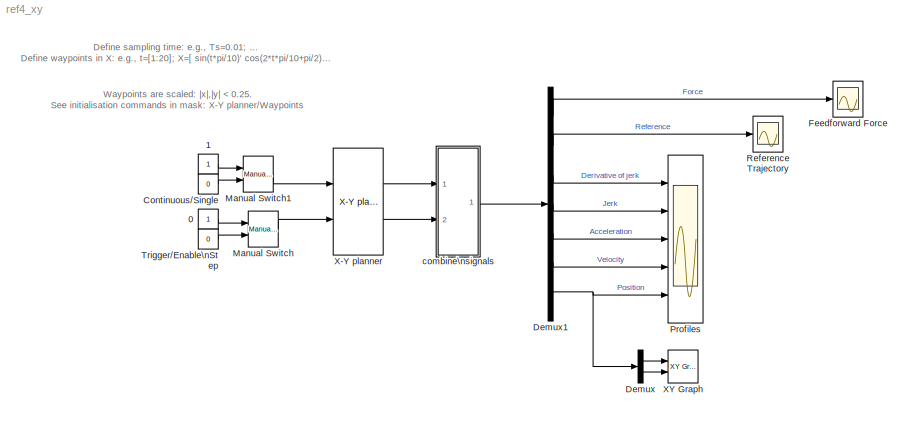
MODEL ref4_xy
KIND model
BLOCK [Constant] 0
  SID = 1
BLOCK [Constant] 1
  SID = 2
BLOCK [Constant] Continuous//Single
  SID = 3
  Value = 0
BLOCK [Demux] Demux
  Outputs = 2
  Ports = [1, 2]
  SID = 4
BLOCK [Demux] Demux1
  Outputs = 7
  Ports = [1, 7]
  SID = 5
BLOCK [Scope] Feedforward Force
  Floating = off
  NumInputPorts = 1
  Ports = [1]
  SID = 6
  ScopeSpecificationString = C++SS(StrPVP('Location','[494, 515, 849, 807]'),StrPVP('Open','off'),StrPVP('TickLabels','OneTimeTick'),StrPVP('ZoomMode','on'),MxPVP('AxesTitles',54,'struct(''axes1'',''%<SignalLabel>'')'),StrPVP('Grid','on'),StrPVP('TimeRange','3'),StrPVP('YMin','-150'),StrPVP('YMax','175'),StrPVP('SaveToWorkspace','off'),StrPVP('SaveName','ScopeData'),StrPVP('DataFormat','StructureWithTime'),StrPVP('LimitDataPo...<+142ch>
BLOCK [Reference] Manual Switch  REF=simulink3/Nonlinear/Manual Switch
  Ports = [2, 1]
  SID = 7
  SourceBlock = simulink3/Nonlinear/Manual Switch
  SourceProductBaseCode = SL
  SourceProductName = Simulink
  SourceType = Manual Switch
  action = 0
  sw = 0
BLOCK [Reference] Manual Switch1  REF=simulink3/Nonlinear/Manual Switch
  Ports = [2, 1]
  SID = 8
  SourceBlock = simulink3/Nonlinear/Manual Switch
  SourceProductBaseCode = SL
  SourceProductName = Simulink
  SourceType = Manual Switch
  action = 0
  sw = 1
BLOCK [Scope] Profiles
  Floating = off
  NumInputPorts = 5
  Ports = [5]
  SID = 9
  ScopeSpecificationString = C++SS(StrPVP('Location','[858, 53, 1213, 808]'),StrPVP('Open','on'),StrPVP('TickLabels','OneTimeTick'),StrPVP('ZoomMode','yonly'),MxPVP('AxesTitles',54,'struct(''axes1'',''%<SignalLabel>'',''axes2'',''%<SignalLabel>'',''axes3'',''%<SignalLabel>'',''axes4'',''%<SignalLabel>'',''axes5'',''%<SignalLabel>'')'),StrPVP('Grid','on'),StrPVP('TimeRange','25'),StrPVP('YMin','-20000~-200~-2~-0.2~-0.4'),StrPV...<+300ch>
BLOCK [Scope] Reference Trajectory
  Floating = off
  NumInputPorts = 1
  Ports = [1]
  SID = 10
  ScopeSpecificationString = C++SS(StrPVP('Location','[126, 514, 481, 806]'),StrPVP('Open','off'),StrPVP('TickLabels','OneTimeTick'),StrPVP('ZoomMode','yonly'),MxPVP('AxesTitles',54,'struct(''axes1'',''%<SignalLabel>'')'),StrPVP('Grid','on'),StrPVP('TimeRange','3'),StrPVP('YMin','-0.2'),StrPVP('YMax','1.2'),StrPVP('SaveToWorkspace','off'),StrPVP('SaveName','ScopeData1'),StrPVP('DataFormat','StructureWithTime'),StrPVP('LimitDa...<+146ch>
BLOCK [Constant] Trigger//Enable\nStep
  SID = 11
  Value = 0
BLOCK [Reference] X-Y planner   REF=motion/Real Time/X-Y planner   (lib defined in mdl_0f46438c83f5)
  Ports = [2, 2]
  SID = 12
  SourceBlock = motion/Real Time/X-Y planner
  Ts = Ts
  Tsettle = 1
  X = X
BLOCK [Reference] XY Graph  REF=simulink3/Sinks/XY Graph
  Ports = [2]
  SID = 13
  SourceBlock = simulink3/Sinks/XY Graph
  SourceProductBaseCode = SL
  SourceProductName = Simulink
  SourceType = XY scope.
  st = -1
  xmax = .3
  xmin = -.3
  ymax = .3
  ymin = -.3
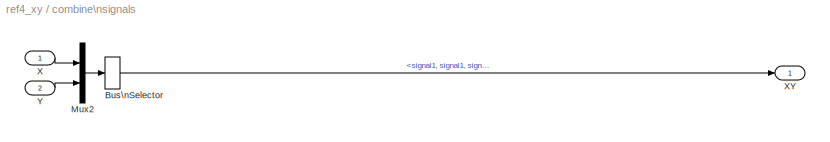
BLOCK [SubSystem] combine\nsignals 
  Ports = [2, 1]
  RequestExecContextInheritance = off
  SID = 14
BLOCK [BusSelector] combine\nsignals /Bus\nSelector
  OutputAsBus = on
  OutputSignals = signal1.signal1,signal2.signal1,signal1.signal2,signal2.signal2,signal1.signal3.derivative of jerk,signal2.signal3.derivative of jerk,signal1.signal3.jerk,signal2.signal3.jerk,signal1.signal3.acceleration,signal2.signal3.acceleration,signal1.signal3.velocity,signal2.signal3.velocity,signal1.signal3.position,signal2.signal3.position
  Ports = [1, 1]
  SID = 17
BLOCK [Mux] combine\nsignals /Mux2
  DisplayOption = bar
  Inputs = 2
  Ports = [2, 1]
  SID = 18
BLOCK [Inport] combine\nsignals /X
  IconDisplay = Port number
  SID = 15
BLOCK [Outport] combine\nsignals /XY
  IconDisplay = Port number
  SID = 19
BLOCK [Inport] combine\nsignals /Y
  IconDisplay = Port number
  Port = 2
  SID = 16
ANNOTATION (root): Define sampling time: e.g., Ts=0.01; \nDefine waypoints in X: e.g., t=[1:20]; X=[ sin(t*pi/10)' cos(2*t*pi/10+pi/2)' ];
ANNOTATION (root): Waypoints are scaled: |x|,|y| < 0.25. \nSee initialisation commands in mask: X-Y planner/Waypoints
LINE 0:1 -> Manual Switch:1
LINE 1:1 -> Manual Switch1:1
LINE Continuous//Single:1 -> Manual Switch1:2
LINE Demux1:1 -> Feedforward Force:1
LINE Demux1:2 -> Reference Trajectory:1
LINE Demux1:3 -> Profiles:1
LINE Demux1:4 -> Profiles:2
LINE Demux1:5 -> Profiles:3
LINE Demux1:6 -> Profiles:4
NET Demux1:7 -> Demux:1, Profiles:5
LINE Demux:1 -> XY Graph:1
LINE Demux:2 -> XY Graph:2
LINE Manual Switch1:1 -> X-Y planner :1
LINE Manual Switch:1 -> X-Y planner :2
LINE Trigger//Enable\nStep:1 -> Manual Switch:2
LINE X-Y planner :1 -> combine\nsignals :1
LINE X-Y planner :2 -> combine\nsignals :2
LINE combine\nsignals /Bus\nSelector:1 -> combine\nsignals /XY:1
LINE combine\nsignals /Mux2:1 -> combine\nsignals /Bus\nSelector:1
LINE combine\nsignals /X:1 -> combine\nsignals /Mux2:1
LINE combine\nsignals /Y:1 -> combine\nsignals /Mux2:2
LINE combine\nsignals :1 -> Demux1:1
note: NET lines group one-source signal fan-out (src -> all destinations, sorted); 1:1 wires keep LINE
